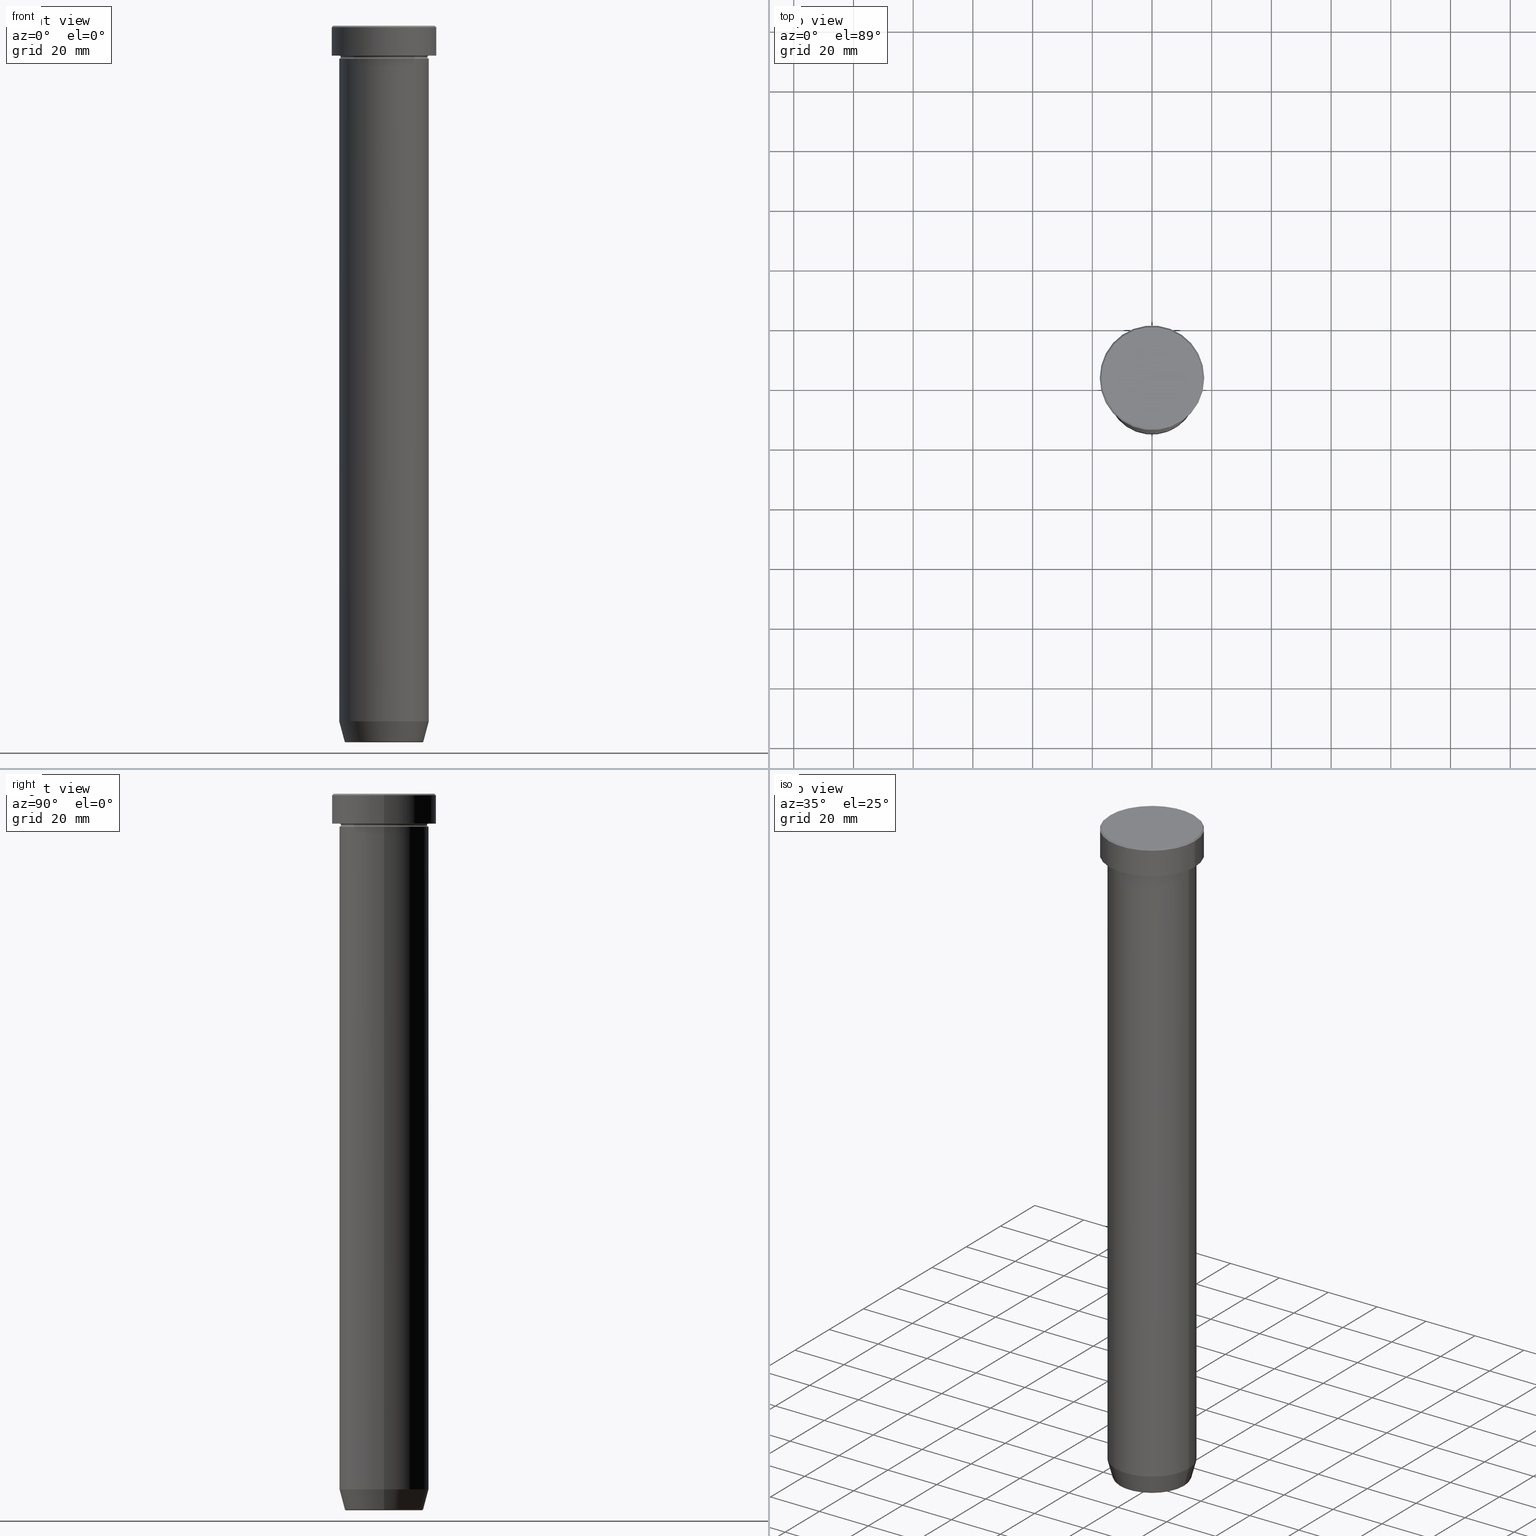
[diagram: canonical four-view strip — front | top / right | iso, engineering-drawing reading convention]
A machine part, canonical four-view strip (front | top / right | iso — engineering-drawing reading convention). The complete STEP part file that produces these views, byte-faithful:
ISO-10303-21;
HEADER;
FILE_DESCRIPTION (( 'STEP AP203' ),
    '1' );
FILE_NAME ('3b33.STEP',
    '2024-01-02T17:37:30',
    ( '' ),
    ( '' ),
    'SwSTEP 2.0',
    'SolidWorks 2019',
    '' );
FILE_SCHEMA (( 'CONFIG_CONTROL_DESIGN' ));
ENDSEC;

DATA;
#1 = DIRECTION ( 'NONE',  ( -0.000000000000000000, -0.000000000000000000, 1.000000000000000000 ) ) ;
#2 = FACE_OUTER_BOUND ( 'NONE', #415, .T. ) ;
#3 = DIRECTION ( 'NONE',  ( 1.000000000000000000, 0.000000000000000000, 0.000000000000000000 ) ) ;
#4 = CARTESIAN_POINT ( 'NONE',  ( -15.00000000000000000, 1.836970198721029589E-15, 0.000000000000000000 ) ) ;
#5 = ORIENTED_EDGE ( 'NONE', *, *, #582, .T. ) ;
#6 = AXIS2_PLACEMENT_3D ( 'NONE', #285, #241, #564 ) ;
#7 = CIRCLE ( 'NONE', #319, 17.00000000000000000 ) ;
#8 = DIRECTION ( 'NONE',  ( -1.000000000000000000, 0.000000000000000000, -0.000000000000000000 ) ) ;
#9 = PERSON_AND_ORGANIZATION_ROLE ( 'creator' ) ;
#10 = DIRECTION ( 'NONE',  ( -0.000000000000000000, -0.000000000000000000, 1.000000000000000000 ) ) ;
#11 = ADVANCED_FACE ( 'NONE', ( #258 ), #445, .T. ) ;
#12 = CARTESIAN_POINT ( 'NONE',  ( 15.00000000000000000, 0.000000000000000000, -36.00000000000000000 ) ) ;
#13 = ORIENTED_EDGE ( 'NONE', *, *, #283, .F. ) ;
#14 = FACE_OUTER_BOUND ( 'NONE', #206, .T. ) ;
#15 = DIRECTION ( 'NONE',  ( 1.000000000000000000, 0.000000000000000000, 0.000000000000000000 ) ) ;
#16 = ORIENTED_EDGE ( 'NONE', *, *, #394, .T. ) ;
#17 = PLANE ( 'NONE',  #157 ) ;
#18 = ORIENTED_EDGE ( 'NONE', *, *, #161, .F. ) ;
#19 = VERTEX_POINT ( 'NONE', #535 ) ;
#20 = AXIS2_PLACEMENT_3D ( 'NONE', #50, #414, #107 ) ;
#21 = SECURITY_CLASSIFICATION ( '', '', #239 ) ;
#22 = CARTESIAN_POINT ( 'NONE',  ( 15.00000000000000000, 0.000000000000000000, -10.49999999999999822 ) ) ;
#23 = EDGE_CURVE ( 'NONE', #193, #337, #46, .T. ) ;
#24 = ORIENTED_EDGE ( 'NONE', *, *, #264, .F. ) ;
#25 = DATE_AND_TIME ( #164, #173 ) ;
#26 = EDGE_LOOP ( 'NONE', ( #166, #532, #5, #561 ) ) ;
#27 = COORDINATED_UNIVERSAL_TIME_OFFSET ( 1, 0, .AHEAD. ) ;
#28 = ORIENTED_EDGE ( 'NONE', *, *, #456, .T. ) ;
#29 = CONICAL_SURFACE ( 'NONE', #6, 13.12435565298214080, 0.2617993877991493523 ) ;
#30 = VECTOR ( 'NONE', #268, 1000.000000000000114 ) ;
#31 = EDGE_CURVE ( 'NONE', #116, #431, #141, .T. ) ;
#32 = APPROVAL_STATUS ( 'not_yet_approved' ) ;
#33 = DIRECTION ( 'NONE',  ( 1.000000000000000000, 0.000000000000000000, 0.000000000000000000 ) ) ;
#34 = DIRECTION ( 'NONE',  ( -0.000000000000000000, -0.000000000000000000, 1.000000000000000000 ) ) ;
#35 = VERTEX_POINT ( 'NONE', #447 ) ;
#36 = DIRECTION ( 'NONE',  ( 1.000000000000000000, 0.000000000000000000, 0.000000000000000000 ) ) ;
#37 = CIRCLE ( 'NONE', #373, 14.49999999999999822 ) ;
#38 = AXIS2_PLACEMENT_3D ( 'NONE', #287, #504, #321 ) ;
#39 = ADVANCED_FACE ( 'NONE', ( #359 ), #417, .T. ) ;
#40 = FACE_OUTER_BOUND ( 'NONE', #284, .T. ) ;
#41 = PLANE ( 'NONE',  #578 ) ;
#42 = CARTESIAN_POINT ( 'NONE',  ( 0.000000000000000000, 0.000000000000000000, -9.999999999999998224 ) ) ;
#43 = CARTESIAN_POINT ( 'NONE',  ( 0.000000000000000000, 0.000000000000000000, -232.9999999999999716 ) ) ;
#44 = LINE ( 'NONE', #221, #441 ) ;
#45 = CARTESIAN_POINT ( 'NONE',  ( 12.74069215899266361, 0.000000000000000000, -240.0000000000000000 ) ) ;
#46 = CIRCLE ( 'NONE', #318, 17.00000000000000000 ) ;
#47 = ADVANCED_FACE ( 'NONE', ( #499 ), #90, .T. ) ;
#48 = DIRECTION ( 'NONE',  ( -1.000000000000000000, 0.000000000000000000, 0.000000000000000000 ) ) ;
#49 = CIRCLE ( 'NONE', #123, 15.00000000000000000 ) ;
#50 = CARTESIAN_POINT ( 'NONE',  ( 0.000000000000000000, 0.000000000000000000, -36.00000000000000000 ) ) ;
#51 = ORIENTED_EDGE ( 'NONE', *, *, #403, .T. ) ;
#52 = DIRECTION ( 'NONE',  ( -0.000000000000000000, -1.000000000000000000, -0.000000000000000000 ) ) ;
#53 = EDGE_LOOP ( 'NONE', ( #256, #570, #579, #18 ) ) ;
#54 = EDGE_CURVE ( 'NONE', #193, #379, #233, .T. ) ;
#55 = CARTESIAN_POINT ( 'NONE',  ( -15.00000000000000000, 1.836970198721029589E-15, -36.00000000000000000 ) ) ;
#56 = CARTESIAN_POINT ( 'NONE',  ( 12.74069215899266361, 0.000000000000000000, -239.5000000000000000 ) ) ;
#57 = ORIENTED_EDGE ( 'NONE', *, *, #302, .T. ) ;
#58 = CIRCLE ( 'NONE', #438, 15.00000000000000000 ) ;
#59 = CIRCLE ( 'NONE', #216, 17.50000000000000000 ) ;
#60 = CALENDAR_DATE ( 2024, 2, 1 ) ;
#61 = LINE ( 'NONE', #380, #83 ) ;
#62 = CARTESIAN_POINT ( 'NONE',  ( 0.000000000000000000, 0.000000000000000000, -240.0000000000000000 ) ) ;
#63 = ORIENTED_EDGE ( 'NONE', *, *, #302, .F. ) ;
#64 = ORIENTED_EDGE ( 'NONE', *, *, #201, .T. ) ;
#65 = ORIENTED_EDGE ( 'NONE', *, *, #317, .F. ) ;
#66 = ADVANCED_FACE ( 'NONE', ( #367 ), #460, .F. ) ;
#67 = CIRCLE ( 'NONE', #392, 13.22365507213720370 ) ;
#68 = EDGE_LOOP ( 'NONE', ( #143, #478, #51, #473 ) ) ;
#69 = ORIENTED_EDGE ( 'NONE', *, *, #93, .T. ) ;
#70 = ORIENTED_EDGE ( 'NONE', *, *, #93, .F. ) ;
#71 = EDGE_CURVE ( 'NONE', #584, #75, #413, .T. ) ;
#72 = DIRECTION ( 'NONE',  ( 0.000000000000000000, -1.000000000000000000, 0.000000000000000000 ) ) ;
#73 = ORIENTED_EDGE ( 'NONE', *, *, #31, .T. ) ;
#74 = DATE_AND_TIME ( #119, #77 ) ;
#75 = VERTEX_POINT ( 'NONE', #140 ) ;
#76 = CLOSED_SHELL ( 'NONE', ( #493, #225, #66, #133, #11, #326, #364, #47, #306, #335, #345, #113, #448 ) ) ;
#77 = LOCAL_TIME ( 18, 37, 30.00000000000000000, #533 ) ;
#78 = CARTESIAN_POINT ( 'NONE',  ( 0.000000000000000000, 0.000000000000000000, -0.5000000000000073275 ) ) ;
#79 = DIRECTION ( 'NONE',  ( -0.000000000000000000, -0.000000000000000000, 1.000000000000000000 ) ) ;
#80 = CARTESIAN_POINT ( 'NONE',  ( 15.00000000000000178, 0.000000000000000000, -232.9999999999999716 ) ) ;
#81 = EDGE_CURVE ( 'NONE', #583, #122, #232, .T. ) ;
#82 = CARTESIAN_POINT ( 'NONE',  ( 0.000000000000000000, 0.000000000000000000, -36.00000000000000000 ) ) ;
#83 = VECTOR ( 'NONE', #482, 1000.000000000000000 ) ;
#84 = DIRECTION ( 'NONE',  ( 1.000000000000000000, 0.000000000000000000, 0.000000000000000000 ) ) ;
#85 = VECTOR ( 'NONE', #560, 1000.000000000000000 ) ;
#86 = CARTESIAN_POINT ( 'NONE',  ( -13.22365507213720370, 1.728200442216589569E-15, -239.6294095225512422 ) ) ;
#87 = CARTESIAN_POINT ( 'NONE',  ( -12.74069215899266361, 1.589857736427681824E-15, -240.0000000000000000 ) ) ;
#88 = PLANE ( 'NONE',  #383 ) ;
#89 = DIRECTION ( 'NONE',  ( 0.000000000000000000, 0.000000000000000000, -1.000000000000000000 ) ) ;
#90 = CYLINDRICAL_SURFACE ( 'NONE', #307, 17.50000000000000000 ) ;
#91 = CARTESIAN_POINT ( 'NONE',  ( 0.000000000000000000, 0.000000000000000000, -239.5000000000000000 ) ) ;
#92 = DIRECTION ( 'NONE',  ( -0.000000000000000000, -0.000000000000000000, 1.000000000000000000 ) ) ;
#93 = EDGE_CURVE ( 'NONE', #75, #19, #251, .T. ) ;
#94 =( LENGTH_UNIT ( ) NAMED_UNIT ( * ) SI_UNIT ( .MILLI., .METRE. ) );
#95 = CARTESIAN_POINT ( 'NONE',  ( 0.000000000000000000, 0.000000000000000000, -9.999999999999998224 ) ) ;
#96 = DIRECTION ( 'NONE',  ( 1.000000000000000000, 0.000000000000000000, 0.000000000000000000 ) ) ;
#97 = CARTESIAN_POINT ( 'NONE',  ( -15.00000000000000000, 0.000000000000000000, -9.999999999999998224 ) ) ;
#98 = DIRECTION ( 'NONE',  ( -0.000000000000000000, -0.000000000000000000, 1.000000000000000000 ) ) ;
#99 = VERTEX_POINT ( 'NONE', #45 ) ;
#100 = CONICAL_SURFACE ( 'NONE', #38, 17.00000000000000000, 0.7853981633974415066 ) ;
#101 = DIRECTION ( 'NONE',  ( -1.000000000000000000, 1.224646799147353454E-16, 0.000000000000000000 ) ) ;
#102 = ORIENTED_EDGE ( 'NONE', *, *, #54, .F. ) ;
#103 = DIRECTION ( 'NONE',  ( 0.000000000000000000, 0.000000000000000000, -1.000000000000000000 ) ) ;
#104 = COORDINATED_UNIVERSAL_TIME_OFFSET ( 1, 0, .AHEAD. ) ;
#105 = ORIENTED_EDGE ( 'NONE', *, *, #597, .F. ) ;
#106 = CARTESIAN_POINT ( 'NONE',  ( 0.000000000000000000, 0.000000000000000000, 0.000000000000000000 ) ) ;
#107 = DIRECTION ( 'NONE',  ( 1.000000000000000000, 0.000000000000000000, 0.000000000000000000 ) ) ;
#108 = ORIENTED_EDGE ( 'NONE', *, *, #71, .T. ) ;
#109 = AXIS2_PLACEMENT_3D ( 'NONE', #42, #228, #48 ) ;
#110 = AXIS2_PLACEMENT_3D ( 'NONE', #289, #202, #567 ) ;
#111 = CARTESIAN_POINT ( 'NONE',  ( 17.50000000000000000, 0.000000000000000000, -9.999999999999998224 ) ) ;
#112 = ORIENTED_EDGE ( 'NONE', *, *, #341, .T. ) ;
#113 = ADVANCED_FACE ( 'NONE', ( #187 ), #506, .F. ) ;
#114 = CIRCLE ( 'NONE', #451, 17.50000000000000000 ) ;
#115 = AXIS2_PLACEMENT_3D ( 'NONE', #501, #92, #412 ) ;
#116 = VERTEX_POINT ( 'NONE', #509 ) ;
#117 = ADVANCED_FACE ( 'NONE', ( #14 ), #29, .T. ) ;
#118 = VERTEX_POINT ( 'NONE', #147 ) ;
#119 = CALENDAR_DATE ( 2024, 2, 1 ) ;
#120 = ORIENTED_EDGE ( 'NONE', *, *, #246, .F. ) ;
#121 = ORIENTED_EDGE ( 'NONE', *, *, #480, .T. ) ;
#122 = VERTEX_POINT ( 'NONE', #420 ) ;
#123 = AXIS2_PLACEMENT_3D ( 'NONE', #376, #596, #148 ) ;
#124 = DIRECTION ( 'NONE',  ( 1.000000000000000000, 0.000000000000000000, 0.000000000000000000 ) ) ;
#125 = ORIENTED_EDGE ( 'NONE', *, *, #385, .F. ) ;
#126 = DIRECTION ( 'NONE',  ( -0.2588190451025206840, 3.169619151431763092E-17, 0.9659258262890683122 ) ) ;
#127 = EDGE_CURVE ( 'NONE', #209, #557, #67, .T. ) ;
#128 = CARTESIAN_POINT ( 'NONE',  ( 17.00000000000000000, 2.112515728529184067E-15, 0.000000000000000000 ) ) ;
#129 = LINE ( 'NONE', #588, #405 ) ;
#130 = TOROIDAL_SURFACE ( 'NONE', #440, 15.00000000000000000, 0.5000000000000000000 ) ;
#131 = CARTESIAN_POINT ( 'NONE',  ( 0.000000000000000000, 0.000000000000000000, 0.000000000000000000 ) ) ;
#132 = CIRCLE ( 'NONE', #115, 13.22365507213720370 ) ;
#133 = ADVANCED_FACE ( 'NONE', ( #152 ), #336, .T. ) ;
#134 = DIRECTION ( 'NONE',  ( -0.000000000000000000, -0.000000000000000000, 1.000000000000000000 ) ) ;
#135 = CARTESIAN_POINT ( 'NONE',  ( -15.00000000000000000, 0.000000000000000000, -10.49999999999999822 ) ) ;
#136 = CC_DESIGN_PERSON_AND_ORGANIZATION_ASSIGNMENT ( #146, #514, ( #21 ) ) ;
#137 = DIRECTION ( 'NONE',  ( 0.000000000000000000, 0.000000000000000000, -1.000000000000000000 ) ) ;
#138 = ORIENTED_EDGE ( 'NONE', *, *, #177, .T. ) ;
#139 = FACE_OUTER_BOUND ( 'NONE', #486, .T. ) ;
#140 = CARTESIAN_POINT ( 'NONE',  ( -15.00000000000000000, 1.836970198721029589E-15, -11.00000000000000000 ) ) ;
#141 = CIRCLE ( 'NONE', #571, 14.49999999999999822 ) ;
#142 = DIRECTION ( 'NONE',  ( 0.000000000000000000, 0.000000000000000000, -1.000000000000000000 ) ) ;
#143 = ORIENTED_EDGE ( 'NONE', *, *, #456, .F. ) ;
#144 = AXIS2_PLACEMENT_3D ( 'NONE', #190, #554, #96 ) ;
#145 = CC_DESIGN_APPROVAL ( #311, ( #586 ) ) ;
#146 = PERSON_AND_ORGANIZATION ( #551, #508 ) ;
#147 = CARTESIAN_POINT ( 'NONE',  ( 15.00000000000000000, 1.836970198721029589E-15, -9.999999999999998224 ) ) ;
#148 = DIRECTION ( 'NONE',  ( 1.000000000000000000, 0.000000000000000000, 0.000000000000000000 ) ) ;
#149 = EDGE_CURVE ( 'NONE', #384, #19, #61, .T. ) ;
#150 = ORIENTED_EDGE ( 'NONE', *, *, #31, .F. ) ;
#151 = PERSON_AND_ORGANIZATION_ROLE ( 'design_supplier' ) ;
#152 = FACE_OUTER_BOUND ( 'NONE', #372, .T. ) ;
#153 = DIRECTION ( 'NONE',  ( -1.000000000000000000, -1.224646799147349509E-16, 0.000000000000000000 ) ) ;
#154 = ORIENTED_EDGE ( 'NONE', *, *, #418, .F. ) ;
#155 = CARTESIAN_POINT ( 'NONE',  ( 0.000000000000000000, 0.000000000000000000, -10.49999999999999822 ) ) ;
#156 = EDGE_LOOP ( 'NONE', ( #154, #73, #481, #308 ) ) ;
#157 = AXIS2_PLACEMENT_3D ( 'NONE', #329, #103, #8 ) ;
#158 = EDGE_CURVE ( 'NONE', #430, #583, #279, .T. ) ;
#159 = ORIENTED_EDGE ( 'NONE', *, *, #81, .T. ) ;
#160 = APPROVAL_STATUS ( 'not_yet_approved' ) ;
#161 = EDGE_CURVE ( 'NONE', #337, #35, #411, .T. ) ;
#162 = CIRCLE ( 'NONE', #205, 0.5000000000000004441 ) ;
#163 = EDGE_LOOP ( 'NONE', ( #235, #112, #243, #468 ) ) ;
#164 = CALENDAR_DATE ( 2024, 2, 1 ) ;
#165 = EDGE_LOOP ( 'NONE', ( #16, #422 ) ) ;
#166 = ORIENTED_EDGE ( 'NONE', *, *, #597, .T. ) ;
#167 = ORIENTED_EDGE ( 'NONE', *, *, #538, .F. ) ;
#168 = APPLICATION_PROTOCOL_DEFINITION ( 'international standard', 'config_control_design', 1994, #398 ) ;
#169 = ORIENTED_EDGE ( 'NONE', *, *, #291, .T. ) ;
#170 = VECTOR ( 'NONE', #374, 1000.000000000000000 ) ;
#171 = EDGE_CURVE ( 'NONE', #431, #116, #37, .T. ) ;
#172 = AXIS2_PLACEMENT_3D ( 'NONE', #135, #52, #238 ) ;
#173 = LOCAL_TIME ( 18, 37, 30.00000000000000000, #577 ) ;
#174 = DIRECTION ( 'NONE',  ( -0.000000000000000000, -0.000000000000000000, 1.000000000000000000 ) ) ;
#175 = DIRECTION ( 'NONE',  ( 0.000000000000000000, 0.000000000000000000, -1.000000000000000000 ) ) ;
#176 = MANIFOLD_SOLID_BREP ( 'Zaoblit4', #360 ) ;
#177 = EDGE_CURVE ( 'NONE', #327, #118, #58, .T. ) ;
#178 = DIRECTION ( 'NONE',  ( 1.000000000000000000, 0.000000000000000000, 0.000000000000000000 ) ) ;
#179 = PERSON_AND_ORGANIZATION ( #551, #508 ) ;
#180 = DIRECTION ( 'NONE',  ( -0.000000000000000000, -0.000000000000000000, 1.000000000000000000 ) ) ;
#181 = AXIS2_PLACEMENT_3D ( 'NONE', #328, #277, #124 ) ;
#182 = AXIS2_PLACEMENT_3D ( 'NONE', #363, #450, #396 ) ;
#183 = APPROVAL ( #160, 'NEUR�EN�' ) ;
#184 = DIRECTION ( 'NONE',  ( -1.224646799147353207E-16, 1.000000000000000000, 0.000000000000000000 ) ) ;
#185 = DIRECTION ( 'NONE',  ( 1.000000000000000000, 0.000000000000000000, 0.000000000000000000 ) ) ;
#186 = DIRECTION ( 'NONE',  ( 1.000000000000000000, 0.000000000000000000, 0.000000000000000000 ) ) ;
#187 = FACE_OUTER_BOUND ( 'NONE', #156, .T. ) ;
#188 = FACE_OUTER_BOUND ( 'NONE', #249, .T. ) ;
#189 = ORIENTED_EDGE ( 'NONE', *, *, #264, .T. ) ;
#190 = CARTESIAN_POINT ( 'NONE',  ( 0.000000000000000000, 0.000000000000000000, 0.000000000000000000 ) ) ;
#191 = CC_DESIGN_PERSON_AND_ORGANIZATION_ASSIGNMENT ( #485, #344, ( #213 ) ) ;
#192 = DIRECTION ( 'NONE',  ( -0.000000000000000000, -0.000000000000000000, 1.000000000000000000 ) ) ;
#193 = VERTEX_POINT ( 'NONE', #128 ) ;
#194 = CIRCLE ( 'NONE', #585, 15.00000000000000178 ) ;
#195 = APPROVAL_PERSON_ORGANIZATION ( #220, #357, #391 ) ;
#196 = CARTESIAN_POINT ( 'NONE',  ( 0.000000000000000000, 0.000000000000000000, -239.6294095225512422 ) ) ;
#197 = DIRECTION ( 'NONE',  ( 0.000000000000000000, 0.000000000000000000, -1.000000000000000000 ) ) ;
#198 = ORIENTED_EDGE ( 'NONE', *, *, #317, .T. ) ;
#199 = DIRECTION ( 'NONE',  ( 1.000000000000000000, 0.000000000000000000, 0.000000000000000000 ) ) ;
#200 = ORIENTED_EDGE ( 'NONE', *, *, #524, .F. ) ;
#201 = EDGE_CURVE ( 'NONE', #379, #35, #114, .T. ) ;
#202 = DIRECTION ( 'NONE',  ( -0.000000000000000000, -0.000000000000000000, 1.000000000000000000 ) ) ;
#203 = ORIENTED_EDGE ( 'NONE', *, *, #158, .F. ) ;
#204 = AXIS2_PLACEMENT_3D ( 'NONE', #155, #98, #298 ) ;
#205 = AXIS2_PLACEMENT_3D ( 'NONE', #56, #421, #197 ) ;
#206 = EDGE_LOOP ( 'NONE', ( #382, #300, #517, #63 ) ) ;
#207 = ORIENTED_EDGE ( 'NONE', *, *, #127, .T. ) ;
#208 = CALENDAR_DATE ( 2024, 2, 1 ) ;
#209 = VERTEX_POINT ( 'NONE', #86 ) ;
#210 = DATE_TIME_ROLE ( 'classification_date' ) ;
#211 = CARTESIAN_POINT ( 'NONE',  ( 0.000000000000000000, 0.000000000000000000, -240.0000000000000000 ) ) ;
#212 = ADVANCED_FACE ( 'NONE', ( #273 ), #226, .T. ) ;
#213 = PRODUCT ( '3b33', '3b33', '', ( #323 ) ) ;
#214 = VECTOR ( 'NONE', #555, 1000.000000000000000 ) ;
#215 = APPROVAL_DATE_TIME ( #435, #357 ) ;
#216 = AXIS2_PLACEMENT_3D ( 'NONE', #544, #89, #503 ) ;
#217 = DIRECTION ( 'NONE',  ( -0.000000000000000000, -0.000000000000000000, 1.000000000000000000 ) ) ;
#218 = PERSON_AND_ORGANIZATION ( #551, #508 ) ;
#219 = EDGE_CURVE ( 'NONE', #118, #327, #389, .T. ) ;
#220 = PERSON_AND_ORGANIZATION ( #551, #508 ) ;
#221 = CARTESIAN_POINT ( 'NONE',  ( -13.12435565298214080, 1.607270014129604977E-15, -240.0000000000000000 ) ) ;
#222 = AXIS2_PLACEMENT_3D ( 'NONE', #106, #294, #199 ) ;
#223 = TOROIDAL_SURFACE ( 'NONE', #181, 15.00000000000000000, 0.5000000000000000000 ) ;
#224 = FACE_OUTER_BOUND ( 'NONE', #491, .T. ) ;
#225 = ADVANCED_FACE ( 'NONE', ( #404 ), #130, .F. ) ;
#226 = CYLINDRICAL_SURFACE ( 'NONE', #529, 15.00000000000000000 ) ;
#227 = CARTESIAN_POINT ( 'NONE',  ( 0.000000000000000000, 0.000000000000000000, -36.00000000000000000 ) ) ;
#228 = DIRECTION ( 'NONE',  ( -0.000000000000000000, -0.000000000000000000, 1.000000000000000000 ) ) ;
#229 = CARTESIAN_POINT ( 'NONE',  ( 13.22365507213720370, 0.000000000000000000, -239.6294095225512422 ) ) ;
#230 = AXIS2_PLACEMENT_3D ( 'NONE', #439, #217, #581 ) ;
#231 = AXIS2_PLACEMENT_3D ( 'NONE', #91, #274, #15 ) ;
#232 = LINE ( 'NONE', #424, #170 ) ;
#233 = LINE ( 'NONE', #475, #214 ) ;
#234 = DIRECTION ( 'NONE',  ( 1.000000000000000000, 0.000000000000000000, 0.000000000000000000 ) ) ;
#235 = ORIENTED_EDGE ( 'NONE', *, *, #546, .T. ) ;
#236 = DESIGN_CONTEXT ( 'detailed design', #398, 'design' ) ;
#237 = ADVANCED_FACE ( 'NONE', ( #255 ), #497, .T. ) ;
#238 = DIRECTION ( 'NONE',  ( 0.000000000000000000, 0.000000000000000000, -1.000000000000000000 ) ) ;
#239 = SECURITY_CLASSIFICATION_LEVEL ( 'unclassified' ) ;
#240 = ORIENTED_EDGE ( 'NONE', *, *, #171, .F. ) ;
#241 = DIRECTION ( 'NONE',  ( -0.000000000000000000, -0.000000000000000000, 1.000000000000000000 ) ) ;
#242 = UNCERTAINTY_MEASURE_WITH_UNIT (LENGTH_MEASURE( 1.000000000000000082E-05 ), #94, 'distance_accuracy_value', 'NONE');
#243 = ORIENTED_EDGE ( 'NONE', *, *, #291, .F. ) ;
#244 = AXIS2_PLACEMENT_3D ( 'NONE', #82, #498, #271 ) ;
#245 = DATE_AND_TIME ( #60, #462 ) ;
#246 = EDGE_CURVE ( 'NONE', #116, #19, #572, .T. ) ;
#247 = CARTESIAN_POINT ( 'NONE',  ( -12.74069215899266361, 1.560284787143214689E-15, -239.5000000000000000 ) ) ;
#248 = EDGE_LOOP ( 'NONE', ( #386, #436, #353, #200 ) ) ;
#249 = EDGE_LOOP ( 'NONE', ( #102, #489, #351, #576 ) ) ;
#250 = DIRECTION ( 'NONE',  ( 1.000000000000000000, 0.000000000000000000, 0.000000000000000000 ) ) ;
#251 = CIRCLE ( 'NONE', #592, 15.00000000000000000 ) ;
#252 = CIRCLE ( 'NONE', #527, 0.5000000000000004441 ) ;
#253 = ORIENTED_EDGE ( 'NONE', *, *, #149, .F. ) ;
#254 = CC_DESIGN_PERSON_AND_ORGANIZATION_ASSIGNMENT ( #313, #346, ( #469 ) ) ;
#255 = FACE_OUTER_BOUND ( 'NONE', #599, .T. ) ;
#256 = ORIENTED_EDGE ( 'NONE', *, *, #23, .F. ) ;
#257 = APPROVAL_DATE_TIME ( #25, #183 ) ;
#258 = FACE_OUTER_BOUND ( 'NONE', #26, .T. ) ;
#259 = VECTOR ( 'NONE', #10, 1000.000000000000000 ) ;
#260 = AXIS2_PLACEMENT_3D ( 'NONE', #62, #137, #234 ) ;
#261 = PRODUCT_DEFINITION_SHAPE ( 'NONE', 'NONE',  #469 ) ;
#262 = ADVANCED_BREP_SHAPE_REPRESENTATION ( '3b33', ( #575, #176, #182 ), #282 ) ;
#263 = ORIENTED_EDGE ( 'NONE', *, *, #480, .F. ) ;
#264 = EDGE_CURVE ( 'NONE', #431, #75, #343, .T. ) ;
#265 = DIRECTION ( 'NONE',  ( -1.000000000000000000, 1.224646799147349509E-16, 0.000000000000000000 ) ) ;
#266 = DIRECTION ( 'NONE',  ( -0.000000000000000000, -0.000000000000000000, 1.000000000000000000 ) ) ;
#267 = DIRECTION ( 'NONE',  ( 0.000000000000000000, 0.000000000000000000, -1.000000000000000000 ) ) ;
#268 = DIRECTION ( 'NONE',  ( 0.2588190451025206840, 0.000000000000000000, 0.9659258262890683122 ) ) ;
#269 = ADVANCED_FACE ( 'NONE', ( #502 ), #543, .F. ) ;
#270 = AXIS2_PLACEMENT_3D ( 'NONE', #278, #598, #186 ) ;
#271 = DIRECTION ( 'NONE',  ( 1.000000000000000000, 0.000000000000000000, 0.000000000000000000 ) ) ;
#272 = APPROVAL_PERSON_ORGANIZATION ( #304, #183, #488 ) ;
#273 = FACE_OUTER_BOUND ( 'NONE', #505, .T. ) ;
#274 = DIRECTION ( 'NONE',  ( -0.000000000000000000, -0.000000000000000000, 1.000000000000000000 ) ) ;
#275 = DIRECTION ( 'NONE',  ( 1.000000000000000000, 0.000000000000000000, 0.000000000000000000 ) ) ;
#276 = CARTESIAN_POINT ( 'NONE',  ( 0.000000000000000000, 0.000000000000000000, 0.000000000000000000 ) ) ;
#277 = DIRECTION ( 'NONE',  ( -0.000000000000000000, -0.000000000000000000, 1.000000000000000000 ) ) ;
#278 = CARTESIAN_POINT ( 'NONE',  ( 0.000000000000000000, 0.000000000000000000, -36.00000000000000000 ) ) ;
#279 = CIRCLE ( 'NONE', #562, 15.00000000000000178 ) ;
#280 = AXIS2_PLACEMENT_3D ( 'NONE', #371, #142, #332 ) ;
#281 = DIRECTION ( 'NONE',  ( 1.000000000000000000, 0.000000000000000000, 0.000000000000000000 ) ) ;
#282 =( GEOMETRIC_REPRESENTATION_CONTEXT ( 3 ) GLOBAL_UNCERTAINTY_ASSIGNED_CONTEXT ( ( #242 ) ) GLOBAL_UNIT_ASSIGNED_CONTEXT ( ( #94, #366, #409 ) ) REPRESENTATION_CONTEXT ( 'NONE', 'WORKASPACE' ) );
#283 = EDGE_CURVE ( 'NONE', #209, #430, #44, .T. ) ;
#284 = EDGE_LOOP ( 'NONE', ( #573, #28, #167, #465 ) ) ;
#285 = CARTESIAN_POINT ( 'NONE',  ( 0.000000000000000000, 0.000000000000000000, -240.0000000000000000 ) ) ;
#286 = ORIENTED_EDGE ( 'NONE', *, *, #569, .T. ) ;
#287 = CARTESIAN_POINT ( 'NONE',  ( 0.000000000000000000, 0.000000000000000000, 0.000000000000000000 ) ) ;
#288 = CALENDAR_DATE ( 2024, 2, 1 ) ;
#289 = CARTESIAN_POINT ( 'NONE',  ( 0.000000000000000000, 0.000000000000000000, 0.000000000000000000 ) ) ;
#290 = ORIENTED_EDGE ( 'NONE', *, *, #219, .T. ) ;
#291 = EDGE_CURVE ( 'NONE', #122, #339, #297, .T. ) ;
#292 = COORDINATED_UNIVERSAL_TIME_OFFSET ( 1, 0, .AHEAD. ) ;
#293 = FACE_OUTER_BOUND ( 'NONE', #522, .T. ) ;
#294 = DIRECTION ( 'NONE',  ( -0.000000000000000000, -0.000000000000000000, 1.000000000000000000 ) ) ;
#295 = CARTESIAN_POINT ( 'NONE',  ( -14.49999999999999822, 1.806354028742345802E-15, -10.49999999999999822 ) ) ;
#296 = ORIENTED_EDGE ( 'NONE', *, *, #246, .T. ) ;
#297 = CIRCLE ( 'NONE', #244, 15.00000000000000000 ) ;
#298 = DIRECTION ( 'NONE',  ( 1.000000000000000000, 0.000000000000000000, 0.000000000000000000 ) ) ;
#299 = CC_DESIGN_DATE_AND_TIME_ASSIGNMENT ( #470, #210, ( #21 ) ) ;
#300 = ORIENTED_EDGE ( 'NONE', *, *, #283, .T. ) ;
#301 = VECTOR ( 'NONE', #316, 1000.000000000000000 ) ;
#302 = EDGE_CURVE ( 'NONE', #557, #583, #314, .T. ) ;
#303 = AXIS2_PLACEMENT_3D ( 'NONE', #521, #184, #153 ) ;
#304 = PERSON_AND_ORGANIZATION ( #551, #508 ) ;
#305 = ORIENTED_EDGE ( 'NONE', *, *, #427, .T. ) ;
#306 = ADVANCED_FACE ( 'NONE', ( #449, #224 ), #88, .T. ) ;
#307 = AXIS2_PLACEMENT_3D ( 'NONE', #553, #134, #3 ) ;
#308 = ORIENTED_EDGE ( 'NONE', *, *, #219, .F. ) ;
#309 = TOROIDAL_SURFACE ( 'NONE', #231, 12.74069215899266361, 0.5000000000000000000 ) ;
#310 = DIRECTION ( 'NONE',  ( -0.000000000000000000, -0.000000000000000000, 1.000000000000000000 ) ) ;
#311 = APPROVAL ( #350, 'NEUR�EN�' ) ;
#312 = CARTESIAN_POINT ( 'NONE',  ( 0.000000000000000000, 0.000000000000000000, -10.49999999999999822 ) ) ;
#313 = PERSON_AND_ORGANIZATION ( #551, #508 ) ;
#314 = LINE ( 'NONE', #495, #30 ) ;
#315 = DIRECTION ( 'NONE',  ( 0.000000000000000000, -0.000000000000000000, 1.000000000000000000 ) ) ;
#316 = DIRECTION ( 'NONE',  ( -0.7071067811865426878, 0.000000000000000000, -0.7071067811865524577 ) ) ;
#317 = EDGE_CURVE ( 'NONE', #416, #333, #484, .T. ) ;
#318 = AXIS2_PLACEMENT_3D ( 'NONE', #131, #310, #492 ) ;
#319 = AXIS2_PLACEMENT_3D ( 'NONE', #558, #479, #33 ) ;
#320 = DIRECTION ( 'NONE',  ( 1.000000000000000000, 0.000000000000000000, 0.000000000000000000 ) ) ;
#321 = DIRECTION ( 'NONE',  ( -1.000000000000000000, 0.000000000000000000, 0.000000000000000000 ) ) ;
#322 = CARTESIAN_POINT ( 'NONE',  ( 0.000000000000000000, 2.326828918379971286E-14, -240.0000000000000000 ) ) ;
#323 = MECHANICAL_CONTEXT ( 'NONE', #459, 'mechanical' ) ;
#324 = CARTESIAN_POINT ( 'NONE',  ( -17.50000000000000000, 2.143131898507868248E-15, -9.999999999999998224 ) ) ;
#325 = DIRECTION ( 'NONE',  ( 1.000000000000000000, 0.000000000000000000, 0.000000000000000000 ) ) ;
#326 = ADVANCED_FACE ( 'NONE', ( #293 ), #17, .T. ) ;
#327 = VERTEX_POINT ( 'NONE', #97 ) ;
#328 = CARTESIAN_POINT ( 'NONE',  ( 0.000000000000000000, 0.000000000000000000, -10.49999999999999822 ) ) ;
#329 = CARTESIAN_POINT ( 'NONE',  ( 0.000000000000000000, 15.00000000000000000, -36.00000000000000000 ) ) ;
#330 = CONICAL_SURFACE ( 'NONE', #280, 17.00000000000000000, 0.7853981633974415066 ) ;
#331 = DIRECTION ( 'NONE',  ( -1.000000000000000000, 0.000000000000000000, 0.000000000000000000 ) ) ;
#332 = DIRECTION ( 'NONE',  ( -1.000000000000000000, 0.000000000000000000, 0.000000000000000000 ) ) ;
#333 = VERTEX_POINT ( 'NONE', #111 ) ;
#334 = EDGE_LOOP ( 'NONE', ( #24, #150, #296, #568 ) ) ;
#335 = ADVANCED_FACE ( 'NONE', ( #2 ), #388, .T. ) ;
#336 = CYLINDRICAL_SURFACE ( 'NONE', #222, 15.00000000000000000 ) ;
#337 = VERTEX_POINT ( 'NONE', #467 ) ;
#338 = AXIS2_PLACEMENT_3D ( 'NONE', #516, #472, #464 ) ;
#339 = VERTEX_POINT ( 'NONE', #55 ) ;
#340 = LOCAL_TIME ( 18, 37, 30.00000000000000000, #27 ) ;
#341 = EDGE_CURVE ( 'NONE', #430, #339, #520, .T. ) ;
#342 = EDGE_LOOP ( 'NONE', ( #138, #290 ) ) ;
#343 = CIRCLE ( 'NONE', #352, 0.5000000000000004441 ) ;
#344 = PERSON_AND_ORGANIZATION_ROLE ( 'design_owner' ) ;
#345 = ADVANCED_FACE ( 'NONE', ( #381 ), #223, .F. ) ;
#346 = PERSON_AND_ORGANIZATION_ROLE ( 'creator' ) ;
#347 = ORIENTED_EDGE ( 'NONE', *, *, #511, .T. ) ;
#348 = ORIENTED_EDGE ( 'NONE', *, *, #387, .F. ) ;
#349 = CC_DESIGN_PERSON_AND_ORGANIZATION_ASSIGNMENT ( #179, #151, ( #586 ) ) ;
#350 = APPROVAL_STATUS ( 'not_yet_approved' ) ;
#351 = ORIENTED_EDGE ( 'NONE', *, *, #161, .T. ) ;
#352 = AXIS2_PLACEMENT_3D ( 'NONE', #446, #587, #265 ) ;
#353 = ORIENTED_EDGE ( 'NONE', *, *, #177, .F. ) ;
#354 = CARTESIAN_POINT ( 'NONE',  ( 0.000000000000000000, 0.000000000000000000, -9.999999999999998224 ) ) ;
#355 = DIRECTION ( 'NONE',  ( -0.000000000000000000, -0.000000000000000000, 1.000000000000000000 ) ) ;
#356 = CARTESIAN_POINT ( 'NONE',  ( 0.000000000000000000, 0.000000000000000000, -10.49999999999999822 ) ) ;
#357 = APPROVAL ( #32, 'NEUR�EN�' ) ;
#358 = DIRECTION ( 'NONE',  ( 1.000000000000000000, 0.000000000000000000, 0.000000000000000000 ) ) ;
#359 = FACE_OUTER_BOUND ( 'NONE', #68, .T. ) ;
#360 = CLOSED_SHELL ( 'NONE', ( #375, #117, #559, #531, #212, #237, #269, #39 ) ) ;
#361 = CARTESIAN_POINT ( 'NONE',  ( 0.000000000000000000, 0.000000000000000000, -232.9999999999999716 ) ) ;
#362 = AXIS2_PLACEMENT_3D ( 'NONE', #211, #34, #250 ) ;
#363 = CARTESIAN_POINT ( 'NONE',  ( 0.000000000000000000, 0.000000000000000000, 0.000000000000000000 ) ) ;
#364 = ADVANCED_FACE ( 'NONE', ( #406 ), #400, .T. ) ;
#365 = DIRECTION ( 'NONE',  ( 0.000000000000000000, 0.000000000000000000, -1.000000000000000000 ) ) ;
#366 =( NAMED_UNIT ( * ) PLANE_ANGLE_UNIT ( ) SI_UNIT ( $, .RADIAN. ) );
#367 = FACE_OUTER_BOUND ( 'NONE', #494, .T. ) ;
#368 = CARTESIAN_POINT ( 'NONE',  ( -17.00000000000000000, 0.000000000000000000, 0.000000000000000000 ) ) ;
#369 = CYLINDRICAL_SURFACE ( 'NONE', #144, 15.00000000000000000 ) ;
#370 = DIRECTION ( 'NONE',  ( 1.000000000000000000, 0.000000000000000000, 0.000000000000000000 ) ) ;
#371 = CARTESIAN_POINT ( 'NONE',  ( 0.000000000000000000, 0.000000000000000000, 0.000000000000000000 ) ) ;
#372 = EDGE_LOOP ( 'NONE', ( #121, #108, #348, #253 ) ) ;
#373 = AXIS2_PLACEMENT_3D ( 'NONE', #312, #174, #325 ) ;
#374 = DIRECTION ( 'NONE',  ( -0.000000000000000000, -0.000000000000000000, 1.000000000000000000 ) ) ;
#375 = ADVANCED_FACE ( 'NONE', ( #40 ), #309, .T. ) ;
#376 = CARTESIAN_POINT ( 'NONE',  ( 0.000000000000000000, 0.000000000000000000, -11.00000000000000000 ) ) ;
#377 = ORIENTED_EDGE ( 'NONE', *, *, #149, .T. ) ;
#378 = DIRECTION ( 'NONE',  ( -0.000000000000000000, -0.000000000000000000, 1.000000000000000000 ) ) ;
#379 = VERTEX_POINT ( 'NONE', #500 ) ;
#380 = CARTESIAN_POINT ( 'NONE',  ( 15.00000000000000000, 0.000000000000000000, 0.000000000000000000 ) ) ;
#381 = FACE_OUTER_BOUND ( 'NONE', #334, .T. ) ;
#382 = ORIENTED_EDGE ( 'NONE', *, *, #538, .T. ) ;
#383 = AXIS2_PLACEMENT_3D ( 'NONE', #395, #175, #453 ) ;
#384 = VERTEX_POINT ( 'NONE', #12 ) ;
#385 = EDGE_CURVE ( 'NONE', #416, #35, #477, .T. ) ;
#386 = ORIENTED_EDGE ( 'NONE', *, *, #171, .T. ) ;
#387 = EDGE_CURVE ( 'NONE', #19, #75, #49, .T. ) ;
#388 = CYLINDRICAL_SURFACE ( 'NONE', #110, 15.00000000000000000 ) ;
#389 = CIRCLE ( 'NONE', #109, 15.00000000000000000 ) ;
#390 = CIRCLE ( 'NONE', #303, 0.5000000000000004441 ) ;
#391 = APPROVAL_ROLE ( '' ) ;
#392 = AXIS2_PLACEMENT_3D ( 'NONE', #196, #378, #566 ) ;
#393 = VECTOR ( 'NONE', #192, 1000.000000000000000 ) ;
#394 = EDGE_CURVE ( 'NONE', #99, #512, #461, .T. ) ;
#395 = CARTESIAN_POINT ( 'NONE',  ( 0.000000000000000000, 17.50000000000000000, -9.999999999999998224 ) ) ;
#396 = DIRECTION ( 'NONE',  ( 1.000000000000000000, 0.000000000000000000, 0.000000000000000000 ) ) ;
#397 = DIRECTION ( 'NONE',  ( -1.000000000000000000, 0.000000000000000000, 0.000000000000000000 ) ) ;
#398 = APPLICATION_CONTEXT ( 'configuration controlled 3d designs of mechanical parts and assemblies' ) ;
#399 = CARTESIAN_POINT ( 'NONE',  ( -15.00000000000000000, 1.836970198721029589E-15, -36.00000000000000000 ) ) ;
#400 = PLANE ( 'NONE',  #490 ) ;
#401 = DIRECTION ( 'NONE',  ( -0.000000000000000000, -0.000000000000000000, 1.000000000000000000 ) ) ;
#402 = DIRECTION ( 'NONE',  ( -1.000000000000000000, 0.000000000000000000, -0.000000000000000000 ) ) ;
#403 = EDGE_CURVE ( 'NONE', #99, #557, #162, .T. ) ;
#404 = FACE_OUTER_BOUND ( 'NONE', #248, .T. ) ;
#405 = VECTOR ( 'NONE', #466, 1000.000000000000000 ) ;
#406 = FACE_OUTER_BOUND ( 'NONE', #542, .T. ) ;
#407 = LOCAL_TIME ( 18, 37, 30.00000000000000000, #104 ) ;
#408 = FACE_OUTER_BOUND ( 'NONE', #163, .T. ) ;
#409 =( NAMED_UNIT ( * ) SI_UNIT ( $, .STERADIAN. ) SOLID_ANGLE_UNIT ( ) );
#410 = CARTESIAN_POINT ( 'NONE',  ( -17.50000000000000000, 2.143131898507868248E-15, 0.000000000000000000 ) ) ;
#411 = LINE ( 'NONE', #368, #301 ) ;
#412 = DIRECTION ( 'NONE',  ( -1.000000000000000000, 0.000000000000000000, 0.000000000000000000 ) ) ;
#413 = LINE ( 'NONE', #595, #259 ) ;
#414 = DIRECTION ( 'NONE',  ( -0.000000000000000000, -0.000000000000000000, 1.000000000000000000 ) ) ;
#415 = EDGE_LOOP ( 'NONE', ( #425, #305, #377, #70 ) ) ;
#416 = VERTEX_POINT ( 'NONE', #324 ) ;
#417 = TOROIDAL_SURFACE ( 'NONE', #523, 12.74069215899266361, 0.5000000000000000000 ) ;
#418 = EDGE_CURVE ( 'NONE', #116, #118, #390, .T. ) ;
#419 = CIRCLE ( 'NONE', #260, 12.74069215899266361 ) ;
#420 = CARTESIAN_POINT ( 'NONE',  ( 15.00000000000000000, 0.000000000000000000, -36.00000000000000000 ) ) ;
#421 = DIRECTION ( 'NONE',  ( 0.000000000000000000, -1.000000000000000000, 0.000000000000000000 ) ) ;
#422 = ORIENTED_EDGE ( 'NONE', *, *, #432, .T. ) ;
#423 = APPROVAL_DATE_TIME ( #245, #311 ) ;
#424 = CARTESIAN_POINT ( 'NONE',  ( 15.00000000000000000, 0.000000000000000000, 0.000000000000000000 ) ) ;
#425 = ORIENTED_EDGE ( 'NONE', *, *, #71, .F. ) ;
#426 = ORIENTED_EDGE ( 'NONE', *, *, #427, .F. ) ;
#427 = EDGE_CURVE ( 'NONE', #584, #384, #474, .T. ) ;
#428 = CIRCLE ( 'NONE', #172, 0.5000000000000004441 ) ;
#429 = CC_DESIGN_APPROVAL ( #183, ( #21 ) ) ;
#430 = VERTEX_POINT ( 'NONE', #556 ) ;
#431 = VERTEX_POINT ( 'NONE', #295 ) ;
#432 = EDGE_CURVE ( 'NONE', #512, #99, #419, .T. ) ;
#433 = CARTESIAN_POINT ( 'NONE',  ( 0.000000000000000000, 0.000000000000000000, -10.49999999999999822 ) ) ;
#434 = ORIENTED_EDGE ( 'NONE', *, *, #574, .T. ) ;
#435 = DATE_AND_TIME ( #208, #340 ) ;
#436 = ORIENTED_EDGE ( 'NONE', *, *, #418, .T. ) ;
#437 = DIRECTION ( 'NONE',  ( 0.000000000000000000, 0.000000000000000000, -1.000000000000000000 ) ) ;
#438 = AXIS2_PLACEMENT_3D ( 'NONE', #95, #355, #397 ) ;
#439 = CARTESIAN_POINT ( 'NONE',  ( 0.000000000000000000, 0.000000000000000000, 0.000000000000000000 ) ) ;
#440 = AXIS2_PLACEMENT_3D ( 'NONE', #433, #539, #483 ) ;
#441 = VECTOR ( 'NONE', #126, 1000.000000000000114 ) ;
#442 = AXIS2_PLACEMENT_3D ( 'NONE', #354, #180, #358 ) ;
#443 = DATE_TIME_ROLE ( 'creation_date' ) ;
#444 = ORIENTED_EDGE ( 'NONE', *, *, #569, .F. ) ;
#445 = CYLINDRICAL_SURFACE ( 'NONE', #230, 17.50000000000000000 ) ;
#446 = CARTESIAN_POINT ( 'NONE',  ( -15.00000000000000000, 1.836970198721029589E-15, -10.49999999999999822 ) ) ;
#447 = CARTESIAN_POINT ( 'NONE',  ( -17.50000000000000000, 2.143131898507868248E-15, -0.5000000000000073275 ) ) ;
#448 = ADVANCED_FACE ( 'NONE', ( #188 ), #330, .T. ) ;
#449 = FACE_BOUND ( 'NONE', #342, .T. ) ;
#450 = DIRECTION ( 'NONE',  ( 0.000000000000000000, 0.000000000000000000, 1.000000000000000000 ) ) ;
#451 = AXIS2_PLACEMENT_3D ( 'NONE', #78, #267, #496 ) ;
#452 = AXIS2_PLACEMENT_3D ( 'NONE', #518, #525, #370 ) ;
#453 = DIRECTION ( 'NONE',  ( -1.000000000000000000, 0.000000000000000000, -0.000000000000000000 ) ) ;
#454 = CARTESIAN_POINT ( 'NONE',  ( 0.000000000000000000, 0.000000000000000000, -239.5000000000000000 ) ) ;
#455 = DIRECTION ( 'NONE',  ( 1.000000000000000000, 0.000000000000000000, 0.000000000000000000 ) ) ;
#456 = EDGE_CURVE ( 'NONE', #512, #209, #252, .T. ) ;
#457 = DIRECTION ( 'NONE',  ( 0.000000000000000000, -0.000000000000000000, 1.000000000000000000 ) ) ;
#458 = CC_DESIGN_PERSON_AND_ORGANIZATION_ASSIGNMENT ( #590, #9, ( #586 ) ) ;
#459 = APPLICATION_CONTEXT ( 'configuration controlled 3d designs of mechanical parts and assemblies' ) ;
#460 = TOROIDAL_SURFACE ( 'NONE', #204, 15.00000000000000000, 0.5000000000000000000 ) ;
#461 = CIRCLE ( 'NONE', #338, 12.74069215899266361 ) ;
#462 = LOCAL_TIME ( 18, 37, 30.00000000000000000, #292 ) ;
#463 = DIRECTION ( 'NONE',  ( 0.000000000000000000, 0.000000000000000000, -1.000000000000000000 ) ) ;
#464 = DIRECTION ( 'NONE',  ( 1.000000000000000000, 0.000000000000000000, 0.000000000000000000 ) ) ;
#465 = ORIENTED_EDGE ( 'NONE', *, *, #403, .F. ) ;
#466 = DIRECTION ( 'NONE',  ( -0.000000000000000000, -0.000000000000000000, 1.000000000000000000 ) ) ;
#467 = CARTESIAN_POINT ( 'NONE',  ( -17.00000000000000000, 0.000000000000000000, 0.000000000000000000 ) ) ;
#468 = ORIENTED_EDGE ( 'NONE', *, *, #81, .F. ) ;
#469 = PRODUCT_DEFINITION ( 'NEZN�M�', '', #586, #236 ) ;
#470 = DATE_AND_TIME ( #288, #407 ) ;
#471 = CARTESIAN_POINT ( 'NONE',  ( 0.000000000000000000, 0.000000000000000000, -10.49999999999999822 ) ) ;
#472 = DIRECTION ( 'NONE',  ( 0.000000000000000000, 0.000000000000000000, -1.000000000000000000 ) ) ;
#473 = ORIENTED_EDGE ( 'NONE', *, *, #127, .F. ) ;
#474 = CIRCLE ( 'NONE', #20, 15.00000000000000000 ) ;
#475 = CARTESIAN_POINT ( 'NONE',  ( 17.00000000000000000, 2.081899558550500280E-15, 0.000000000000000000 ) ) ;
#476 = CC_DESIGN_APPROVAL ( #357, ( #469 ) ) ;
#477 = LINE ( 'NONE', #410, #85 ) ;
#478 = ORIENTED_EDGE ( 'NONE', *, *, #394, .F. ) ;
#479 = DIRECTION ( 'NONE',  ( -0.000000000000000000, -0.000000000000000000, 1.000000000000000000 ) ) ;
#480 = EDGE_CURVE ( 'NONE', #384, #584, #526, .T. ) ;
#481 = ORIENTED_EDGE ( 'NONE', *, *, #524, .T. ) ;
#482 = DIRECTION ( 'NONE',  ( -0.000000000000000000, -0.000000000000000000, 1.000000000000000000 ) ) ;
#483 = DIRECTION ( 'NONE',  ( -1.000000000000000000, 0.000000000000000000, 0.000000000000000000 ) ) ;
#484 = CIRCLE ( 'NONE', #452, 17.50000000000000000 ) ;
#485 = PERSON_AND_ORGANIZATION ( #551, #508 ) ;
#486 = EDGE_LOOP ( 'NONE', ( #169, #286 ) ) ;
#487 = PRODUCT_RELATED_PRODUCT_CATEGORY ( 'detail', '', ( #213 ) ) ;
#488 = APPROVAL_ROLE ( '' ) ;
#489 = ORIENTED_EDGE ( 'NONE', *, *, #574, .F. ) ;
#490 = AXIS2_PLACEMENT_3D ( 'NONE', #545, #315, #455 ) ;
#491 = EDGE_LOOP ( 'NONE', ( #105, #65 ) ) ;
#492 = DIRECTION ( 'NONE',  ( 1.000000000000000000, 0.000000000000000000, 0.000000000000000000 ) ) ;
#493 = ADVANCED_FACE ( 'NONE', ( #552 ), #100, .T. ) ;
#494 = EDGE_LOOP ( 'NONE', ( #240, #189, #69, #120 ) ) ;
#495 = CARTESIAN_POINT ( 'NONE',  ( 13.12435565298214080, 0.000000000000000000, -240.0000000000000000 ) ) ;
#496 = DIRECTION ( 'NONE',  ( 1.000000000000000000, 0.000000000000000000, 0.000000000000000000 ) ) ;
#497 = CONICAL_SURFACE ( 'NONE', #362, 13.12435565298214080, 0.2617993877991493523 ) ;
#498 = DIRECTION ( 'NONE',  ( -0.000000000000000000, -0.000000000000000000, 1.000000000000000000 ) ) ;
#499 = FACE_OUTER_BOUND ( 'NONE', #537, .T. ) ;
#500 = CARTESIAN_POINT ( 'NONE',  ( 17.50000000000000000, 0.000000000000000000, -0.5000000000000073275 ) ) ;
#501 = CARTESIAN_POINT ( 'NONE',  ( 0.000000000000000000, 0.000000000000000000, -239.6294095225512422 ) ) ;
#502 = FACE_OUTER_BOUND ( 'NONE', #165, .T. ) ;
#503 = DIRECTION ( 'NONE',  ( 1.000000000000000000, 0.000000000000000000, 0.000000000000000000 ) ) ;
#504 = DIRECTION ( 'NONE',  ( 0.000000000000000000, 0.000000000000000000, -1.000000000000000000 ) ) ;
#505 = EDGE_LOOP ( 'NONE', ( #534, #565, #159, #444 ) ) ;
#506 = TOROIDAL_SURFACE ( 'NONE', #540, 15.00000000000000000, 0.5000000000000000000 ) ;
#507 = AXIS2_PLACEMENT_3D ( 'NONE', #22, #72, #437 ) ;
#508 = ORGANIZATION ( 'NEUR�EN�', 'NEUR�EN�', '' ) ;
#509 = CARTESIAN_POINT ( 'NONE',  ( 14.49999999999999822, 0.000000000000000000, -10.49999999999999822 ) ) ;
#510 = DIRECTION ( 'NONE',  ( 1.224646799147353207E-16, 1.000000000000000000, 0.000000000000000000 ) ) ;
#511 = EDGE_CURVE ( 'NONE', #333, #379, #129, .T. ) ;
#512 = VERTEX_POINT ( 'NONE', #87 ) ;
#513 = CARTESIAN_POINT ( 'NONE',  ( 0.000000000000000000, 0.000000000000000000, -36.00000000000000000 ) ) ;
#514 = PERSON_AND_ORGANIZATION_ROLE ( 'classification_officer' ) ;
#515 = CARTESIAN_POINT ( 'NONE',  ( 0.000000000000000000, 0.000000000000000000, -11.00000000000000000 ) ) ;
#516 = CARTESIAN_POINT ( 'NONE',  ( 0.000000000000000000, 0.000000000000000000, -240.0000000000000000 ) ) ;
#517 = ORIENTED_EDGE ( 'NONE', *, *, #546, .F. ) ;
#518 = CARTESIAN_POINT ( 'NONE',  ( 0.000000000000000000, 0.000000000000000000, -9.999999999999998224 ) ) ;
#519 = DIRECTION ( 'NONE',  ( -0.000000000000000000, -0.000000000000000000, 1.000000000000000000 ) ) ;
#520 = LINE ( 'NONE', #4, #393 ) ;
#521 = CARTESIAN_POINT ( 'NONE',  ( 15.00000000000000000, 1.836970198721029589E-15, -10.49999999999999822 ) ) ;
#522 = EDGE_LOOP ( 'NONE', ( #263, #426 ) ) ;
#523 = AXIS2_PLACEMENT_3D ( 'NONE', #454, #548, #320 ) ;
#524 = EDGE_CURVE ( 'NONE', #431, #327, #428, .T. ) ;
#525 = DIRECTION ( 'NONE',  ( -0.000000000000000000, -0.000000000000000000, 1.000000000000000000 ) ) ;
#526 = CIRCLE ( 'NONE', #593, 15.00000000000000000 ) ;
#527 = AXIS2_PLACEMENT_3D ( 'NONE', #247, #510, #101 ) ;
#528 = ORIENTED_EDGE ( 'NONE', *, *, #23, .T. ) ;
#529 = AXIS2_PLACEMENT_3D ( 'NONE', #276, #401, #178 ) ;
#530 = CIRCLE ( 'NONE', #270, 15.00000000000000000 ) ;
#531 = ADVANCED_FACE ( 'NONE', ( #139 ), #41, .F. ) ;
#532 = ORIENTED_EDGE ( 'NONE', *, *, #385, .T. ) ;
#533 = COORDINATED_UNIVERSAL_TIME_OFFSET ( 1, 0, .AHEAD. ) ;
#534 = ORIENTED_EDGE ( 'NONE', *, *, #341, .F. ) ;
#535 = CARTESIAN_POINT ( 'NONE',  ( 15.00000000000000000, 0.000000000000000000, -11.00000000000000000 ) ) ;
#536 = APPROVAL_ROLE ( '' ) ;
#537 = EDGE_LOOP ( 'NONE', ( #125, #198, #347, #64 ) ) ;
#538 = EDGE_CURVE ( 'NONE', #557, #209, #132, .T. ) ;
#539 = DIRECTION ( 'NONE',  ( 0.000000000000000000, 0.000000000000000000, -1.000000000000000000 ) ) ;
#540 = AXIS2_PLACEMENT_3D ( 'NONE', #471, #463, #331 ) ;
#541 = APPROVAL_PERSON_ORGANIZATION ( #218, #311, #536 ) ;
#542 = EDGE_LOOP ( 'NONE', ( #434, #528 ) ) ;
#543 = PLANE ( 'NONE',  #563 ) ;
#544 = CARTESIAN_POINT ( 'NONE',  ( 0.000000000000000000, 0.000000000000000000, -0.5000000000000073275 ) ) ;
#545 = CARTESIAN_POINT ( 'NONE',  ( 0.000000000000000000, 0.000000000000000000, 0.000000000000000000 ) ) ;
#546 = EDGE_CURVE ( 'NONE', #583, #430, #194, .T. ) ;
#547 = DIRECTION ( 'NONE',  ( -0.000000000000000000, -0.000000000000000000, 1.000000000000000000 ) ) ;
#548 = DIRECTION ( 'NONE',  ( -0.000000000000000000, -0.000000000000000000, 1.000000000000000000 ) ) ;
#549 = CIRCLE ( 'NONE', #442, 17.50000000000000000 ) ;
#550 = CC_DESIGN_SECURITY_CLASSIFICATION ( #21, ( #586 ) ) ;
#551 = PERSON ( 'NEUR�EN�', 'NEUR�EN�', 'NEUR�EN�', ('NEUR�EN�'), ('NEUR�EN�'), ('NEUR�EN�') ) ;
#552 = FACE_OUTER_BOUND ( 'NONE', #53, .T. ) ;
#553 = CARTESIAN_POINT ( 'NONE',  ( 0.000000000000000000, 0.000000000000000000, 0.000000000000000000 ) ) ;
#554 = DIRECTION ( 'NONE',  ( -0.000000000000000000, -0.000000000000000000, 1.000000000000000000 ) ) ;
#555 = DIRECTION ( 'NONE',  ( 0.7071067811865426878, 8.659560562354874926E-17, -0.7071067811865524577 ) ) ;
#556 = CARTESIAN_POINT ( 'NONE',  ( -15.00000000000000355, 1.836970198721029983E-15, -232.9999999999999716 ) ) ;
#557 = VERTEX_POINT ( 'NONE', #229 ) ;
#558 = CARTESIAN_POINT ( 'NONE',  ( 0.000000000000000000, 0.000000000000000000, 0.000000000000000000 ) ) ;
#559 = ADVANCED_FACE ( 'NONE', ( #408 ), #369, .T. ) ;
#560 = DIRECTION ( 'NONE',  ( -0.000000000000000000, -0.000000000000000000, 1.000000000000000000 ) ) ;
#561 = ORIENTED_EDGE ( 'NONE', *, *, #511, .F. ) ;
#562 = AXIS2_PLACEMENT_3D ( 'NONE', #361, #79, #185 ) ;
#563 = AXIS2_PLACEMENT_3D ( 'NONE', #322, #457, #36 ) ;
#564 = DIRECTION ( 'NONE',  ( 1.000000000000000000, 0.000000000000000000, 0.000000000000000000 ) ) ;
#565 = ORIENTED_EDGE ( 'NONE', *, *, #158, .T. ) ;
#566 = DIRECTION ( 'NONE',  ( -1.000000000000000000, 0.000000000000000000, 0.000000000000000000 ) ) ;
#567 = DIRECTION ( 'NONE',  ( 1.000000000000000000, 0.000000000000000000, 0.000000000000000000 ) ) ;
#568 = ORIENTED_EDGE ( 'NONE', *, *, #387, .T. ) ;
#569 = EDGE_CURVE ( 'NONE', #339, #122, #530, .T. ) ;
#570 = ORIENTED_EDGE ( 'NONE', *, *, #54, .T. ) ;
#571 = AXIS2_PLACEMENT_3D ( 'NONE', #356, #266, #84 ) ;
#572 = CIRCLE ( 'NONE', #507, 0.5000000000000004441 ) ;
#573 = ORIENTED_EDGE ( 'NONE', *, *, #432, .F. ) ;
#574 = EDGE_CURVE ( 'NONE', #337, #193, #7, .T. ) ;
#575 = MANIFOLD_SOLID_BREP ( 'Zkosen�1', #76 ) ;
#576 = ORIENTED_EDGE ( 'NONE', *, *, #201, .F. ) ;
#577 = COORDINATED_UNIVERSAL_TIME_OFFSET ( 1, 0, .AHEAD. ) ;
#578 = AXIS2_PLACEMENT_3D ( 'NONE', #227, #365, #402 ) ;
#579 = ORIENTED_EDGE ( 'NONE', *, *, #582, .F. ) ;
#580 = SHAPE_DEFINITION_REPRESENTATION ( #261, #262 ) ;
#581 = DIRECTION ( 'NONE',  ( 1.000000000000000000, 0.000000000000000000, 0.000000000000000000 ) ) ;
#582 = EDGE_CURVE ( 'NONE', #35, #379, #59, .T. ) ;
#583 = VERTEX_POINT ( 'NONE', #80 ) ;
#584 = VERTEX_POINT ( 'NONE', #399 ) ;
#585 = AXIS2_PLACEMENT_3D ( 'NONE', #43, #1, #275 ) ;
#586 = PRODUCT_DEFINITION_FORMATION_WITH_SPECIFIED_SOURCE ( 'LIBOVOLN�', '', #213, .NOT_KNOWN. ) ;
#587 = DIRECTION ( 'NONE',  ( 1.224646799147353207E-16, 1.000000000000000000, 0.000000000000000000 ) ) ;
#588 = CARTESIAN_POINT ( 'NONE',  ( 17.50000000000000000, 0.000000000000000000, 0.000000000000000000 ) ) ;
#589 = CC_DESIGN_DATE_AND_TIME_ASSIGNMENT ( #74, #443, ( #469 ) ) ;
#590 = PERSON_AND_ORGANIZATION ( #551, #508 ) ;
#591 = APPLICATION_PROTOCOL_DEFINITION ( 'international standard', 'config_control_design', 1994, #459 ) ;
#592 = AXIS2_PLACEMENT_3D ( 'NONE', #515, #519, #281 ) ;
#593 = AXIS2_PLACEMENT_3D ( 'NONE', #513, #547, #594 ) ;
#594 = DIRECTION ( 'NONE',  ( 1.000000000000000000, 0.000000000000000000, 0.000000000000000000 ) ) ;
#595 = CARTESIAN_POINT ( 'NONE',  ( -15.00000000000000000, 1.836970198721029589E-15, 0.000000000000000000 ) ) ;
#596 = DIRECTION ( 'NONE',  ( -0.000000000000000000, -0.000000000000000000, 1.000000000000000000 ) ) ;
#597 = EDGE_CURVE ( 'NONE', #333, #416, #549, .T. ) ;
#598 = DIRECTION ( 'NONE',  ( -0.000000000000000000, -0.000000000000000000, 1.000000000000000000 ) ) ;
#599 = EDGE_LOOP ( 'NONE', ( #13, #207, #57, #203 ) ) ;
ENDSEC;
END-ISO-10303-21;
